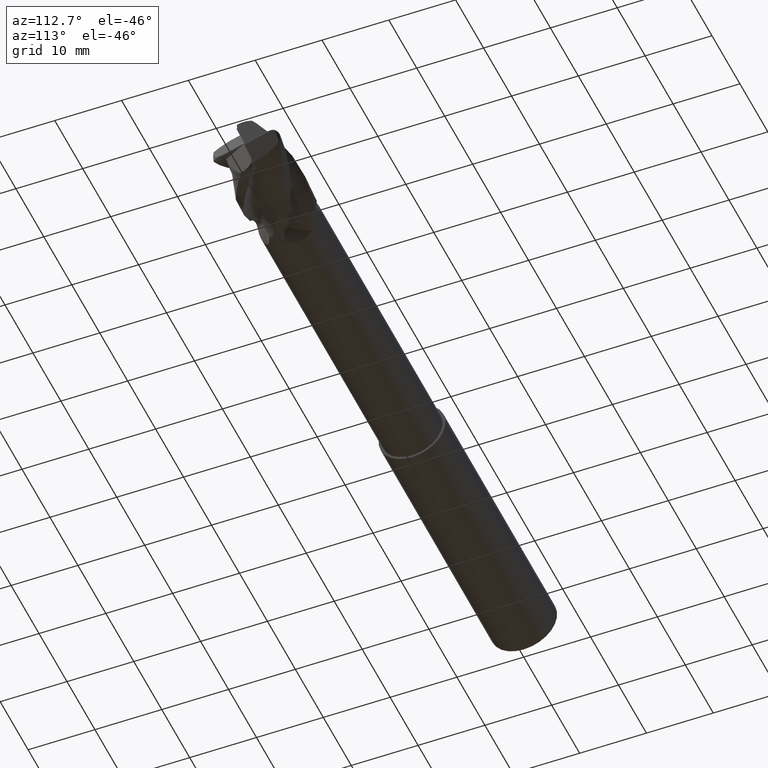
[diagram: clean part render]
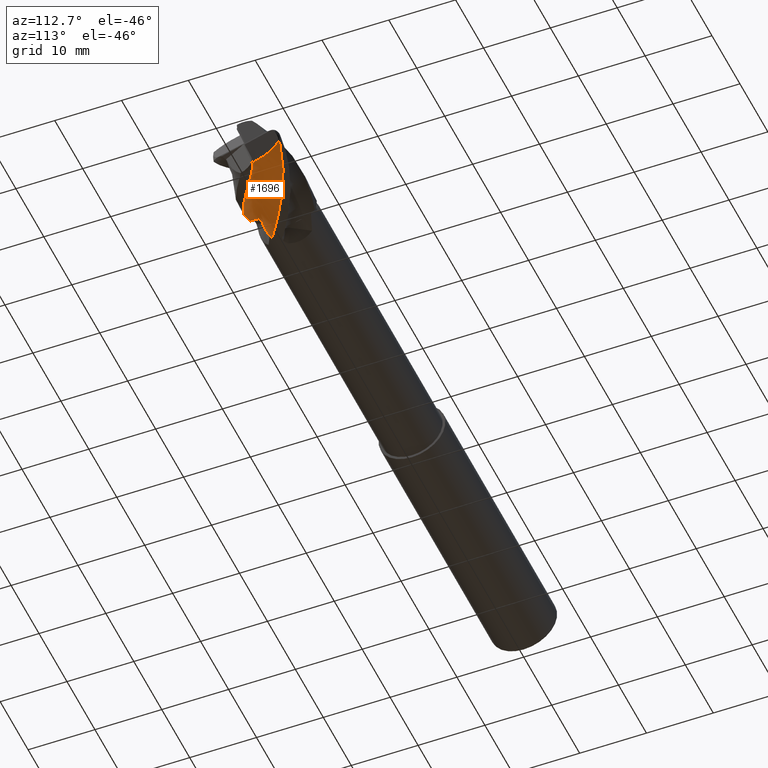
[diagram: same view with one face highlighted and labeled with its STEP entity id]
A machine part, auxiliary view. The second image highlights one B-rep face of the part: STEP entity #1696.
In plain terms, the highlighted face is a freeform B-spline surface patch.
Its self-contained STEP definition (entity closure, byte-faithful):
#38 = EDGE_CURVE ( 'NONE', #1763, #1782, #160, .T. ) ;
#58 = EDGE_CURVE ( 'NONE', #1766, #1767, #156, .T. ) ;
#74 = EDGE_CURVE ( 'NONE', #2662, #2607, #415, .T. ) ;
#92 = EDGE_CURVE ( 'NONE', #1789, #1786, #733, .T. ) ;
#102 = EDGE_CURVE ( 'NONE', #1779, #1789, #732, .T. ) ;
#156 = B_SPLINE_CURVE_WITH_KNOTS ( 'NONE', 3,
 ( #5655, #5666, #5671, #5669, #5667, #5661, #5668, #5672, #5662, #5654, #5657, #5670, #5650, #5651, #5663, #5665, #5664, #5653, #5659, #5648, #4824, #4726, #4716, #4748, #4780, #4777 ),
 .UNSPECIFIED., .F., .F.,
 ( 4, 2, 2, 2, 2, 2, 2, 2, 2, 2, 2, 2, 4 ),
 ( 8.324215926712369400E-017, 0.001939156009957261600, 0.002908734014935850400, 0.003878312019914439100, 0.005817468029871614800, 0.006787046034850201400, 0.007756624039828789700, 0.009695780049785964600, 0.01066535805476454500, 0.01163493605974312400, 0.01357409206970029900, 0.01454367007467889500, 0.01551324807965748900 ),
 .UNSPECIFIED. ) ;
#160 = B_SPLINE_CURVE_WITH_KNOTS ( 'NONE', 3,
 ( #2764, #452, #451, #453, #5582, #5584, #5569, #5581, #5578, #5580, #5579, #5583 ),
 .UNSPECIFIED., .F., .F.,
 ( 4, 2, 2, 2, 2, 4 ),
 ( 0.0000000000000000000, 0.0004275252582157458200, 0.0008550505164314918600, 0.001282575774647238100, 0.001496338403755105400, 0.001710101032862973100 ),
 .UNSPECIFIED. ) ;
#169 = EDGE_CURVE ( 'NONE', #1786, #1766, #716, .T. ) ;
#191 = EDGE_CURVE ( 'NONE', #1782, #1779, #2711, .T. ) ;
#217 = EDGE_CURVE ( 'NONE', #1767, #2643, #2730, .T. ) ;
#234 = EDGE_CURVE ( 'NONE', #2643, #2662, #2717, .T. ) ;
#317 = CARTESIAN_POINT ( 'NONE',  ( 45.99999999999997200, -3.529516829317929500, -0.1851095921582330600 ) ) ;
#318 = CARTESIAN_POINT ( 'NONE',  ( 45.99999999999998600, -3.275838028917830200, -0.4259428403772095900 ) ) ;
#319 = CARTESIAN_POINT ( 'NONE',  ( 45.99999999999996400, -3.161059373026418000, -0.6436876724968448900 ) ) ;
#337 = CARTESIAN_POINT ( 'NONE',  ( 59.99714993954945200, 1.078809157000151000, -3.513018445286014000 ) ) ;
#338 = CARTESIAN_POINT ( 'NONE',  ( 59.99853558469167300, 1.058041002878561200, -3.683273640296142600 ) ) ;
#340 = CARTESIAN_POINT ( 'NONE',  ( 59.99602833100370700, 1.137561027736997200, -3.357411630902131300 ) ) ;
#360 = CARTESIAN_POINT ( 'NONE',  ( 60.00000000000000000, 1.088817076066964400, -3.848957959612783400 ) ) ;
#367 = CARTESIAN_POINT ( 'NONE',  ( 45.99999999999997900, -2.906013568409943700, -2.011059925496842200 ) ) ;
#368 = CARTESIAN_POINT ( 'NONE',  ( 45.99999999999998600, -3.098800133782952900, -0.9260452901069511400 ) ) ;
#370 = CARTESIAN_POINT ( 'NONE',  ( 46.00000000000000700, -3.092073378238994400, -0.9838059069133665600 ) ) ;
#371 = CARTESIAN_POINT ( 'NONE',  ( 46.00000000000000000, -3.077523979198901700, -1.099080384364972600 ) ) ;
#372 = CARTESIAN_POINT ( 'NONE',  ( 46.00000000000000700, -3.069647595265638800, -1.156575587592473500 ) ) ;
#373 = CARTESIAN_POINT ( 'NONE',  ( 45.99999999999999300, -3.044208163997244500, -1.328711892809693300 ) ) ;
#378 = CARTESIAN_POINT ( 'NONE',  ( 46.00000000000000700, -3.024834418264444200, -1.443004532401514800 ) ) ;
#380 = CARTESIAN_POINT ( 'NONE',  ( 45.99999999999999300, -2.959477107630369600, -1.784488972969075200 ) ) ;
#381 = CARTESIAN_POINT ( 'NONE',  ( 45.99999999999998600, -1.691591331482551300, -4.705158739857060900 ) ) ;
#383 = CARTESIAN_POINT ( 'NONE',  ( 45.99999999999997200, -2.594242809929294700, -3.121278543714051300 ) ) ;
#384 = CARTESIAN_POINT ( 'NONE',  ( 45.99999999999998600, -2.205103977371806400, -3.942858431902057000 ) ) ;
#386 = CARTESIAN_POINT ( 'NONE',  ( 46.00000000000001400, -3.627236731883142000, -0.1193411230585577800 ) ) ;
#415 = LINE ( 'NONE', #4709, #442 ) ;
#417 = EDGE_LOOP ( 'NONE', ( #709, #486, #680, #547, #581, #514, #526, #690, #477, #691 ) ) ;
#442 = VECTOR ( 'NONE', #4732, 1000.000000000000000 ) ;
#451 = CARTESIAN_POINT ( 'NONE',  ( 59.23807028003486200, 0.8630167669702241100, -4.904270866197449200 ) ) ;
#452 = CARTESIAN_POINT ( 'NONE',  ( 59.12064028403644800, 0.7896058702466488600, -4.937898635752723000 ) ) ;
#453 = CARTESIAN_POINT ( 'NONE',  ( 59.46896441576322400, 0.9943022478572706200, -4.790272084161220100 ) ) ;
#477 = ORIENTED_EDGE ( 'NONE', *, *, #5700, .F. ) ;
#486 = ORIENTED_EDGE ( 'NONE', *, *, #217, .F. ) ;
#514 = ORIENTED_EDGE ( 'NONE', *, *, #102, .F. ) ;
#526 = ORIENTED_EDGE ( 'NONE', *, *, #191, .F. ) ;
#547 = ORIENTED_EDGE ( 'NONE', *, *, #169, .F. ) ;
#581 = ORIENTED_EDGE ( 'NONE', *, *, #92, .F. ) ;
#680 = ORIENTED_EDGE ( 'NONE', *, *, #58, .F. ) ;
#690 = ORIENTED_EDGE ( 'NONE', *, *, #38, .F. ) ;
#691 = ORIENTED_EDGE ( 'NONE', *, *, #74, .F. ) ;
#709 = ORIENTED_EDGE ( 'NONE', *, *, #234, .F. ) ;
#716 = B_SPLINE_CURVE_WITH_KNOTS ( 'NONE', 3,
 ( #2875, #2870, #2869, #2867 ),
 .UNSPECIFIED., .F., .F.,
 ( 4, 4 ),
 ( 0.001710868118500819800, 0.002073565971242148600 ),
 .UNSPECIFIED. ) ;
#732 = B_SPLINE_CURVE_WITH_KNOTS ( 'NONE', 3,
 ( #2997, #3072, #3026, #2984, #3017, #3044 ),
 .UNSPECIFIED., .F., .F.,
 ( 4, 2, 4 ),
 ( 0.001822405988376531300, 0.002373485176579898100, 0.002924564364783264500 ),
 .UNSPECIFIED. ) ;
#733 = B_SPLINE_CURVE_WITH_KNOTS ( 'NONE', 3,
 ( #3067, #3068, #3065, #2951, #3021, #3038, #3050, #3052, #3036, #3023, #3013, #2993 ),
 .UNSPECIFIED., .F., .F.,
 ( 4, 2, 2, 2, 2, 4 ),
 ( 0.002025208126637110600, 0.002608545509489196800, 0.003191882892341282500, 0.004358557658045454800, 0.005525232423749627100, 0.006691907189453800300 ),
 .UNSPECIFIED. ) ;
#1696 = ADVANCED_FACE ( 'NONE', ( #2774 ), #4814, .F. ) ;
#1763 = VERTEX_POINT ( 'NONE', #5271 ) ;
#1766 = VERTEX_POINT ( 'NONE', #5274 ) ;
#1767 = VERTEX_POINT ( 'NONE', #5275 ) ;
#1779 = VERTEX_POINT ( 'NONE', #5286 ) ;
#1782 = VERTEX_POINT ( 'NONE', #5289 ) ;
#1786 = VERTEX_POINT ( 'NONE', #5293 ) ;
#1789 = VERTEX_POINT ( 'NONE', #5296 ) ;
#1799 = CARTESIAN_POINT ( 'NONE',  ( 46.00000000000000000, -3.956909409790347400, -3.993948575847859300E-014 ) ) ;
#1801 = CARTESIAN_POINT ( 'NONE',  ( 46.00000000000002100, -4.075000000000009900, -4.164332582023078000E-014 ) ) ;
#1910 = CARTESIAN_POINT ( 'NONE',  ( 46.00000000000002100, -4.075000000000009900, -4.164332582023078000E-014 ) ) ;
#1936 = CARTESIAN_POINT ( 'NONE',  ( 46.00000000000000000, -4.250000000000012400, -4.090430909306575300E-014 ) ) ;
#1937 = CARTESIAN_POINT ( 'NONE',  ( 46.00000000000000000, -4.425000000000014000, -4.090430909306575300E-014 ) ) ;
#1938 = CARTESIAN_POINT ( 'NONE',  ( 46.00000000000002800, -4.603806250000014100, -4.676041058834078400E-014 ) ) ;
#2607 = VERTEX_POINT ( 'NONE', #5320 ) ;
#2643 = VERTEX_POINT ( 'NONE', #5331 ) ;
#2662 = VERTEX_POINT ( 'NONE', #5335 ) ;
#2711 = B_SPLINE_CURVE_WITH_KNOTS ( 'NONE', 3,
 ( #360, #338, #337, #340 ),
 .UNSPECIFIED., .F., .F.,
 ( 4, 4 ),
 ( 0.0000000000000000000, 0.0004974621187295739700 ),
 .UNSPECIFIED. ) ;
#2717 = B_SPLINE_CURVE_WITH_KNOTS ( 'NONE', 3,
 ( #1910, #1936, #1937, #1938 ),
 .UNSPECIFIED., .F., .F.,
 ( 4, 4 ),
 ( 0.0000000000000000000, 1.000000000000000000 ),
 .UNSPECIFIED. ) ;
#2730 = B_SPLINE_CURVE_WITH_KNOTS ( 'NONE', 3,
 ( #381, #384, #383, #367, #380, #378, #373, #372, #371, #370, #368, #319, #318, #317, #386, #2847, #1799, #1801 ),
 .UNSPECIFIED., .F., .F.,
 ( 4, 2, 2, 2, 2, 2, 2, 2, 4 ),
 ( 0.0004284838340080712700, 0.003155709349303424800, 0.003837515728127263000, 0.004178418917539182400, 0.004348870512245141600, 0.004519322106951100000, 0.005201128485774936900, 0.005542031675186854600, 0.005882934864598773000 ),
 .UNSPECIFIED. ) ;
#2764 = CARTESIAN_POINT ( 'NONE',  ( 59.00000000000000000, 0.7109128242130307000, -4.949202254543070700 ) ) ;
#2774 = FACE_OUTER_BOUND ( 'NONE', #417, .T. ) ;
#2847 = CARTESIAN_POINT ( 'NONE',  ( 46.00000000000002800, -3.842197877478057000, -0.02631695675849912700 ) ) ;
#2867 = CARTESIAN_POINT ( 'NONE',  ( 59.00000000000000000, 4.896815992771973200, -1.010541010020307400 ) ) ;
#2869 = CARTESIAN_POINT ( 'NONE',  ( 59.10380185336926200, 4.910193910547110200, -0.9457151384705778700 ) ) ;
#2870 = CARTESIAN_POINT ( 'NONE',  ( 59.21775362647422000, 4.903132288229233600, -0.8918899981819907700 ) ) ;
#2875 = CARTESIAN_POINT ( 'NONE',  ( 59.33249920832221100, 4.866457508753796000, -0.8671008399181759900 ) ) ;
#2951 = CARTESIAN_POINT ( 'NONE',  ( 59.00432694237938600, 1.603402126192876800, -2.869719317875908200 ) ) ;
#2984 = CARTESIAN_POINT ( 'NONE',  ( 59.31282440466891600, 0.9724759487064628100, -3.228141033657491800 ) ) ;
#2993 = CARTESIAN_POINT ( 'NONE',  ( 59.33249920832221100, 4.866457508753796000, -0.8671008399181759900 ) ) ;
#2997 = CARTESIAN_POINT ( 'NONE',  ( 59.99602833100370700, 1.137561027736997200, -3.357411630902131300 ) ) ;
#3013 = CARTESIAN_POINT ( 'NONE',  ( 59.26893102367462500, 4.606681720037986600, -1.150183232524787600 ) ) ;
#3017 = CARTESIAN_POINT ( 'NONE',  ( 59.13930619490221800, 0.9357814397272847800, -3.210721401686719400 ) ) ;
#3021 = CARTESIAN_POINT ( 'NONE',  ( 59.00566763323038800, 1.790271074294630400, -2.812671759221416800 ) ) ;
#3023 = CARTESIAN_POINT ( 'NONE',  ( 59.21516100259059100, 4.322168735479726500, -1.407873049639504900 ) ) ;
#3026 = CARTESIAN_POINT ( 'NONE',  ( 59.65717465113026200, 1.050390222917853700, -3.277710411183651900 ) ) ;
#3036 = CARTESIAN_POINT ( 'NONE',  ( 59.12419992835034300, 3.711286231325773100, -1.880287214680928900 ) ) ;
#3038 = CARTESIAN_POINT ( 'NONE',  ( 59.01713705153469600, 2.342872375194653900, -2.619188618039141000 ) ) ;
#3044 = CARTESIAN_POINT ( 'NONE',  ( 58.96502804183592900, 0.9003671677530082900, -3.197469055598349400 ) ) ;
#3050 = CARTESIAN_POINT ( 'NONE',  ( 59.03423178705293100, 2.700676605359914300, -2.461980378652717200 ) ) ;
#3052 = CARTESIAN_POINT ( 'NONE',  ( 59.08770827990990400, 3.384478062803634400, -2.092825309109758600 ) ) ;
#3065 = CARTESIAN_POINT ( 'NONE',  ( 59.00564662409079400, 1.225404124342779600, -2.971800587309078700 ) ) ;
#3067 = CARTESIAN_POINT ( 'NONE',  ( 58.96502804183592900, 0.9003671677530082900, -3.197469055598349400 ) ) ;
#3068 = CARTESIAN_POINT ( 'NONE',  ( 58.99055427674379400, 1.048948359004662400, -3.071330523331595500 ) ) ;
#3072 = CARTESIAN_POINT ( 'NONE',  ( 59.82821170705414500, 1.091468156621245000, -3.309335361807225900 ) ) ;
#4240 = CARTESIAN_POINT ( 'NONE',  ( 41.59778928541393100, -3.149999999999911500, -6.679860838698939300 ) ) ;
#4241 = CARTESIAN_POINT ( 'NONE',  ( 42.63379712821317500, -2.260564687721868400, -7.116287527338527300 ) ) ;
#4242 = CARTESIAN_POINT ( 'NONE',  ( 43.67681224955806800, -1.221168424195003400, -7.341838867624955100 ) ) ;
#4243 = CARTESIAN_POINT ( 'NONE',  ( 45.73989784977448600, 0.7474576552271101600, -7.438832626014050000 ) ) ;
#4244 = CARTESIAN_POINT ( 'NONE',  ( 46.78711680419365100, 1.807706374354184800, -7.219595434210525300 ) ) ;
#4245 = CARTESIAN_POINT ( 'NONE',  ( 48.85190096149932500, 3.657857319184828300, -6.510419248440435100 ) ) ;
#4246 = CARTESIAN_POINT ( 'NONE',  ( 49.89797893410978700, 4.535201178605055900, -5.901899140139222200 ) ) ;
#4247 = CARTESIAN_POINT ( 'NONE',  ( 51.96229978740591800, 5.949594400822266300, -4.521031375611245000 ) ) ;
#4248 = CARTESIAN_POINT ( 'NONE',  ( 53.00979443688331100, 6.512254108414159900, -3.602721983293705900 ) ) ;
#4249 = CARTESIAN_POINT ( 'NONE',  ( 55.07406752468383400, 7.257441543561424300, -1.770345038065678000 ) ) ;
#4250 = CARTESIAN_POINT ( 'NONE',  ( 56.12028152415644700, 7.409637548478327700, -0.7098267152868208400 ) ) ;
#4251 = CARTESIAN_POINT ( 'NONE',  ( 58.18436103529151600, 7.362820171123376900, 1.267928681854340500 ) ) ;
#4252 = CARTESIAN_POINT ( 'NONE',  ( 59.23199202011014800, 7.074896574406921900, 2.305294312570544100 ) ) ;
#4253 = CARTESIAN_POINT ( 'NONE',  ( 61.29665352386585700, 6.245505073497851900, 4.099175029076707900 ) ) ;
#4254 = CARTESIAN_POINT ( 'NONE',  ( 62.34235640521855300, 5.577668841587285300, 4.933528188810390300 ) ) ;
#4255 = CARTESIAN_POINT ( 'NONE',  ( 64.40653884820876800, 4.095187487469322800, 6.249096972764965200 ) ) ;
#4256 = CARTESIAN_POINT ( 'NONE',  ( 65.45451604803744800, 3.134208717927992700, 6.743926396041722200 ) ) ;
#4257 = CARTESIAN_POINT ( 'NONE',  ( 67.51842746812833700, 1.263751567697382500, 7.362700056643749500 ) ) ;
#4258 = CARTESIAN_POINT ( 'NONE',  ( 68.56302018386395500, 0.2004755758106100100, 7.444701157372800400 ) ) ;
#4259 = CARTESIAN_POINT ( 'NONE',  ( 69.59552992334589300, -0.7849577433630089400, 7.354280524357603700 ) ) ;
#4260 = CARTESIAN_POINT ( 'NONE',  ( 42.63441696723484100, -3.149999999999932400, -5.106894639429264700 ) ) ;
#4261 = CARTESIAN_POINT ( 'NONE',  ( 43.66950917770056200, -2.470520452167410700, -5.542903565996444300 ) ) ;
#4262 = CARTESIAN_POINT ( 'NONE',  ( 44.71321842190726400, -1.654506733066907400, -5.815363603125661000 ) ) ;
#4263 = CARTESIAN_POINT ( 'NONE',  ( 46.77638856132441700, -0.06764452093895696700, -6.077441319077956400 ) ) ;
#4264 = CARTESIAN_POINT ( 'NONE',  ( 47.82370902283396000, 0.8015253586371592400, -5.992473585882693000 ) ) ;
#4265 = CARTESIAN_POINT ( 'NONE',  ( 49.88841220668172100, 2.365423877143783200, -5.589543875652213800 ) ) ;
#4266 = CARTESIAN_POINT ( 'NONE',  ( 50.93445629140524000, 3.123426326659469100, -5.177295999669211400 ) ) ;
#4267 = CARTESIAN_POINT ( 'NONE',  ( 52.99880574983142600, 4.397698853686512700, -4.189852157081169500 ) ) ;
#4268 = CARTESIAN_POINT ( 'NONE',  ( 54.04632799934333300, 4.928632906915000300, -3.501445480982362300 ) ) ;
#4269 = CARTESIAN_POINT ( 'NONE',  ( 56.11056731706400300, 5.702314671851774500, -2.086264759850751100 ) ) ;
#4270 = CARTESIAN_POINT ( 'NONE',  ( 57.15679207447630000, 5.916726406741236800, -1.247803368420269800 ) ) ;
#4271 = CARTESIAN_POINT ( 'NONE',  ( 59.22088338701416200, 6.062290899487351200, 0.3586653020281404500 ) ) ;
#4272 = CARTESIAN_POINT ( 'NONE',  ( 60.26850987606578500, 5.920926217683087200, 1.216080272916132900 ) ) ;
#4273 = CARTESIAN_POINT ( 'NONE',  ( 62.33311978958930400, 5.415644167434532400, 2.746580554563236500 ) ) ;
#4274 = CARTESIAN_POINT ( 'NONE',  ( 63.37887708635610600, 4.951753776736641300, 3.475239320002823100 ) ) ;
#4275 = CARTESIAN_POINT ( 'NONE',  ( 65.44312021043384700, 3.872960793500567900, 4.677834400549800300 ) ) ;
#4276 = CARTESIAN_POINT ( 'NONE',  ( 66.49102041257504000, 3.145007469831135900, 5.157221340712136600 ) ) ;
#4277 = CARTESIAN_POINT ( 'NONE',  ( 68.55482195883874400, 1.686518302624518700, 5.833255280062862100 ) ) ;
#4278 = CARTESIAN_POINT ( 'NONE',  ( 69.60008720080567500, 0.8387210443358279500, 5.992050238093044700 ) ) ;
#4279 = CARTESIAN_POINT ( 'NONE',  ( 70.63215502731299000, 0.03223094022808317000, 6.010245307557778600 ) ) ;
#4280 = CARTESIAN_POINT ( 'NONE',  ( 43.67104464905574400, -3.149999999999953700, -3.533928440159599400 ) ) ;
#4281 = CARTESIAN_POINT ( 'NONE',  ( 44.70510543196045500, -2.680213191079742400, -3.969470880507628000 ) ) ;
#4282 = CARTESIAN_POINT ( 'NONE',  ( 45.74962459425214000, -2.087845041938941400, -4.288888338626376800 ) ) ;
#4283 = CARTESIAN_POINT ( 'NONE',  ( 47.81287927287864600, -0.8827466971048850700, -4.716050012141870700 ) ) ;
#4284 = CARTESIAN_POINT ( 'NONE',  ( 48.86030124147427500, -0.2046556570798611100, -4.765351737554327700 ) ) ;
#4285 = CARTESIAN_POINT ( 'NONE',  ( 50.92492345186411000, 1.072990435102743100, -4.668668502864536100 ) ) ;
#4286 = CARTESIAN_POINT ( 'NONE',  ( 51.97093364870068700, 1.711651474713891600, -4.452692859198665000 ) ) ;
#4287 = CARTESIAN_POINT ( 'NONE',  ( 54.03531171225692700, 2.845803306550768400, -3.858672938551636300 ) ) ;
#4288 = CARTESIAN_POINT ( 'NONE',  ( 55.08286156180764700, 3.345011705415581000, -3.400168978669942300 ) ) ;
#4289 = CARTESIAN_POINT ( 'NONE',  ( 57.14706710943984500, 4.147187800142404500, -2.402184481636901100 ) ) ;
#4290 = CARTESIAN_POINT ( 'NONE',  ( 58.19330262479184100, 4.423815265004153100, -1.785780021553579300 ) ) ;
#4291 = CARTESIAN_POINT ( 'NONE',  ( 60.25740573874109900, 4.761761627851335300, -0.5505980777981908100 ) ) ;
#4292 = CARTESIAN_POINT ( 'NONE',  ( 61.30502773201712300, 4.766955860959261500, 0.1268662332617289400 ) ) ;
#4293 = CARTESIAN_POINT ( 'NONE',  ( 63.36958605531705000, 4.585783261371219100, 1.393986080049772100 ) ) ;
#4294 = CARTESIAN_POINT ( 'NONE',  ( 64.41539776751946500, 4.325838711886540000, 2.016950451193918700 ) ) ;
#4295 = CARTESIAN_POINT ( 'NONE',  ( 66.47970157263306100, 3.650734099531277400, 3.106571828335990700 ) ) ;
#4296 = CARTESIAN_POINT ( 'NONE',  ( 67.52752477709539400, 3.155806221735355500, 3.570516285382559800 ) ) ;
#4297 = CARTESIAN_POINT ( 'NONE',  ( 69.59121644956638900, 2.109285037550578900, 4.303810503481982700 ) ) ;
#4298 = CARTESIAN_POINT ( 'NONE',  ( 70.63705814052166000, 1.477219971162513800, 4.539506116260702700 ) ) ;
#4299 = CARTESIAN_POINT ( 'NONE',  ( 71.66878013128005900, 0.8494196238191704700, 4.666210090757962400 ) ) ;
#4300 = CARTESIAN_POINT ( 'NONE',  ( 44.96877968262643300, -3.149999999999979500, -1.564761130418152800 ) ) ;
#4301 = CARTESIAN_POINT ( 'NONE',  ( 46.00156840186606600, -2.942208710563716700, -1.999727733564452300 ) ) ;
#4302 = CARTESIAN_POINT ( 'NONE',  ( 47.04708232420694000, -2.630333260875390900, -2.377922170772750500 ) ) ;
#4303 = CARTESIAN_POINT ( 'NONE',  ( 49.11044283590159400, -1.903158044882553100, -3.011749399306885800 ) ) ;
#4304 = CARTESIAN_POINT ( 'NONE',  ( 50.15799187935180500, -1.464275072139099800, -3.229140578076201700 ) ) ;
#4305 = CARTESIAN_POINT ( 'NONE',  ( 52.22251272055216000, -0.5449831013062923500, -3.515841645377595400 ) ) ;
#4306 = CARTESIAN_POINT ( 'NONE',  ( 53.26848049377265000, -0.05572336681590597100, -3.545575581399667400 ) ) ;
#4307 = CARTESIAN_POINT ( 'NONE',  ( 55.33289436757035400, 0.9030139567400359300, -3.444075796479462200 ) ) ;
#4308 = CARTESIAN_POINT ( 'NONE',  ( 56.38047876909668300, 1.362505595333159700, -3.273382797447836000 ) ) ;
#4309 = CARTESIAN_POINT ( 'NONE',  ( 58.44464204057707200, 2.200353214826263200, -2.797678541795994200 ) ) ;
#4310 = CARTESIAN_POINT ( 'NONE',  ( 59.49089102359271700, 2.554867402028808700, -2.459263049508444000 ) ) ;
#4311 = CARTESIAN_POINT ( 'NONE',  ( 61.55500891151744700, 3.133653072018082000, -1.688888095937041100 ) ) ;
#4312 = CARTESIAN_POINT ( 'NONE',  ( 62.60262527661042500, 3.322321701671305100, -1.236700689659397900 ) ) ;
#4313 = CARTESIAN_POINT ( 'NONE',  ( 64.66711901506568000, 3.546895732438962900, -0.2993019408799151800 ) ) ;
#4314 = CARTESIAN_POINT ( 'NONE',  ( 65.71299884891054400, 3.542267211780363700, 0.1913455717311904300 ) ) ;
#4315 = CARTESIAN_POINT ( 'NONE',  ( 67.77737861955982600, 3.372532609048579700, 1.139537257814405600 ) ) ;
#4316 = CARTESIAN_POINT ( 'NONE',  ( 68.82510543202791100, 3.169324979636270800, 1.584149555692211200 ) ) ;
#4317 = CARTESIAN_POINT ( 'NONE',  ( 70.88865955550682000, 2.638538898473083100, 2.389126858343269900 ) ) ;
#4318 = CARTESIAN_POINT ( 'NONE',  ( 71.93486563345527400, 2.276912965869645000, 2.721140699764606800 ) ) ;
#4319 = CARTESIAN_POINT ( 'NONE',  ( 72.96651193768322200, 1.872443031674574600, 2.983637246349545100 ) ) ;
#4320 = CARTESIAN_POINT ( 'NONE',  ( 45.22988703437621200, -3.149999999999985300, -1.168560019946376600 ) ) ;
#4321 = CARTESIAN_POINT ( 'NONE',  ( 46.26245174582923900, -2.994850509682975800, -1.603424222805275500 ) ) ;
#4322 = CARTESIAN_POINT ( 'NONE',  ( 47.30813388182115600, -2.739483170940342700, -1.993431267418683600 ) ) ;
#4323 = CARTESIAN_POINT ( 'NONE',  ( 49.37151568736597800, -2.108467216493751500, -2.668840093407721400 ) ) ;
#4324 = CARTESIAN_POINT ( 'NONE',  ( 50.41909029858472000, -1.717713471481719700, -2.920051266928328300 ) ) ;
#4325 = CARTESIAN_POINT ( 'NONE',  ( 52.48359074406212700, -0.8705231956738814800, -3.283890160676450800 ) ) ;
#4326 = CARTESIAN_POINT ( 'NONE',  ( 53.52954998156208400, -0.4113233564005254700, -3.363061444071488500 ) ) ;
#4327 = CARTESIAN_POINT ( 'NONE',  ( 55.59397106044535500, 0.5121201540654554100, -3.360657872936554800 ) ) ;
#4328 = CARTESIAN_POINT ( 'NONE',  ( 56.64156241391278700, 0.9636206867498937600, -3.247873118537343300 ) ) ;
#4329 = CARTESIAN_POINT ( 'NONE',  ( 58.70571717934707600, 1.808645501219765100, -2.877252880169744100 ) ) ;
#4330 = CARTESIAN_POINT ( 'NONE',  ( 59.75196887209097000, 2.178830680790822000, -2.594769424329190800 ) ) ;
#4331 = CARTESIAN_POINT ( 'NONE',  ( 61.81608973255392700, 2.806073787820582100, -1.917914734250368000 ) ) ;
#4332 = CARTESIAN_POINT ( 'NONE',  ( 62.86370496525670100, 3.031657899106911600, -1.511053572927866500 ) ) ;
#4333 = CARTESIAN_POINT ( 'NONE',  ( 64.92818570908227100, 3.337869109570291500, -0.6399954872943849300 ) ) ;
#4334 = CARTESIAN_POINT ( 'NONE',  ( 65.97407924917273200, 3.384610776524561900, -0.1759704389235725300 ) ) ;
#4335 = CARTESIAN_POINT ( 'NONE',  ( 68.03847430425291500, 3.316557812534906400, 0.7437652595075775500 ) ) ;
#4336 = CARTESIAN_POINT ( 'NONE',  ( 69.08618172244007400, 3.172044985633775100, 1.184487881331443000 ) ) ;
#4337 = CARTESIAN_POINT ( 'NONE',  ( 71.14970817071957800, 2.745026024468721500, 2.003887989785440900 ) ) ;
#4338 = CARTESIAN_POINT ( 'NONE',  ( 72.19591727102853400, 2.437849512570331000, 2.355268794788738100 ) ) ;
#4339 = CARTESIAN_POINT ( 'NONE',  ( 73.22761864011926000, 2.078277755938888700, 2.645099618740950100 ) ) ;
#4340 = CARTESIAN_POINT ( 'NONE',  ( 45.62425174422454400, -3.149999999999993200, -0.5701558198129402800 ) ) ;
#4341 = CARTESIAN_POINT ( 'NONE',  ( 46.65651368893364300, -3.074318966824030500, -1.004880345073452500 ) ) ;
#4342 = CARTESIAN_POINT ( 'NONE',  ( 47.70241432272239000, -2.904338248072506200, -1.412713633371325900 ) ) ;
#4343 = CARTESIAN_POINT ( 'NONE',  ( 49.76582828956046700, -2.418556884016755900, -2.150925419542651700 ) ) ;
#4344 = CARTESIAN_POINT ( 'NONE',  ( 50.81344151716112400, -2.100495343195816200, -2.453216780302658300 ) ) ;
#4345 = CARTESIAN_POINT ( 'NONE',  ( 52.87791115786959800, -1.362204199670981500, -2.933561150980589400 ) ) ;
#4346 = CARTESIAN_POINT ( 'NONE',  ( 53.92385750337570000, -0.9484054637204616400, -3.087400363185944100 ) ) ;
#4347 = CARTESIAN_POINT ( 'NONE',  ( 55.98828946454389000, -0.07826812891595753800, -3.234667221988461300 ) ) ;
#4348 = CARTESIAN_POINT ( 'NONE',  ( 57.03589131789845400, 0.3611629995868138000, -3.209344455691878200 ) ) ;
#4349 = CARTESIAN_POINT ( 'NONE',  ( 59.10003323615524100, 1.217027924056793800, -2.997438354282279800 ) ) ;
#4350 = CARTESIAN_POINT ( 'NONE',  ( 60.14628902154476700, 1.610881860239920900, -2.799432111269369200 ) ) ;
#4351 = CARTESIAN_POINT ( 'NONE',  ( 62.21041437163596300, 2.311312883927894500, -2.263826188525940500 ) ) ;
#4352 = CARTESIAN_POINT ( 'NONE',  ( 63.25802789400289300, 2.592652465542129900, -1.925423733250105900 ) ) ;
#4353 = CARTESIAN_POINT ( 'NONE',  ( 65.32248901133752400, 3.022164772156501500, -1.154563578460368500 ) ) ;
#4354 = CARTESIAN_POINT ( 'NONE',  ( 66.36840325271879200, 3.146493642217273600, -0.7307478934600106800 ) ) ;
#4355 = CARTESIAN_POINT ( 'NONE',  ( 68.43282139270449700, 3.232016016839926600, 0.1460091709392553900 ) ) ;
#4356 = CARTESIAN_POINT ( 'NONE',  ( 69.48049951863104900, 3.176153159413432000, 0.5808570023440946500 ) ) ;
#4357 = CARTESIAN_POINT ( 'NONE',  ( 71.54398416758542100, 2.905859353229041500, 1.422040662994360500 ) ) ;
#4358 = CARTESIAN_POINT ( 'NONE',  ( 72.59014708344766100, 2.680931100362197000, 1.802653715600282600 ) ) ;
#4359 = CARTESIAN_POINT ( 'NONE',  ( 73.62198236927356700, 2.389161194368442300, 2.133787729627444100 ) ) ;
#4360 = CARTESIAN_POINT ( 'NONE',  ( 45.75668852580385200, -3.249690114160921800, -0.3691978629519162600 ) ) ;
#4361 = CARTESIAN_POINT ( 'NONE',  ( 46.78914674200093100, -3.200687868664579200, -0.8173039759731496300 ) ) ;
#4362 = CARTESIAN_POINT ( 'NONE',  ( 47.83460676926808500, -3.056498673120774200, -1.245028610157497700 ) ) ;
#4363 = CARTESIAN_POINT ( 'NONE',  ( 49.89863270383921200, -2.608860584283526900, -2.028883211612115400 ) ) ;
#4364 = CARTESIAN_POINT ( 'NONE',  ( 50.94567732442010300, -2.306909835052912200, -2.360125630106569600 ) ) ;
#4365 = CARTESIAN_POINT ( 'NONE',  ( 53.01061813181801300, -1.585541467740716000, -2.897944767850282800 ) ) ;
#4366 = CARTESIAN_POINT ( 'NONE',  ( 54.05607305009517900, -1.174818063207018000, -3.084256997397007500 ) ) ;
#4367 = CARTESIAN_POINT ( 'NONE',  ( 56.12105407819866100, -0.2973070401891119200, -3.290776123344147000 ) ) ;
#4368 = CARTESIAN_POINT ( 'NONE',  ( 57.16811122057006100, 0.1522911982363153700, -3.296781334340039400 ) ) ;
#4369 = CARTESIAN_POINT ( 'NONE',  ( 59.23277011518507600, 1.038577854516775400, -3.136334314552763600 ) ) ;
#4370 = CARTESIAN_POINT ( 'NONE',  ( 60.27851672728869700, 1.454134469196617600, -2.962838608729854200 ) ) ;
#4371 = CARTESIAN_POINT ( 'NONE',  ( 62.34316487850274100, 2.202973295206379000, -2.462306858306146000 ) ) ;
#4372 = CARTESIAN_POINT ( 'NONE',  ( 63.39022958752239800, 2.514164290347189900, -2.137826686729673100 ) ) ;
#4373 = CARTESIAN_POINT ( 'NONE',  ( 65.45522952152308000, 3.001992926708188000, -1.379789132747957700 ) ) ;
#4374 = CARTESIAN_POINT ( 'NONE',  ( 66.50066362227654800, 3.158924313315480500, -0.9568272515142344200 ) ) ;
#4375 = CARTESIAN_POINT ( 'NONE',  ( 68.56557103471485000, 3.303254825784242700, -0.06861090768321150000 ) ) ;
#4376 = CARTESIAN_POINT ( 'NONE',  ( 69.61265773779709300, 3.278115673674976400, 0.3786574425883645300 ) ) ;
#4377 = CARTESIAN_POINT ( 'NONE',  ( 71.67672950532154600, 3.056759075110536900, 1.253654636259558400 ) ) ;
#4378 = CARTESIAN_POINT ( 'NONE',  ( 72.72236105603231200, 2.854684869333551100, 1.657464551586163700 ) ) ;
#4379 = CARTESIAN_POINT ( 'NONE',  ( 73.75454116064739200, 2.578702087075281900, 2.013937251014839000 ) ) ;
#4380 = CARTESIAN_POINT ( 'NONE',  ( 45.94514288891283400, -3.592162340643971800, -0.08323951119865687100 ) ) ;
#4381 = CARTESIAN_POINT ( 'NONE',  ( 46.97847702918340200, -3.581115688459950900, -0.5774018882313901600 ) ) ;
#4382 = CARTESIAN_POINT ( 'NONE',  ( 48.02227870122842300, -3.467815391585554500, -1.061422311443846800 ) ) ;
#4383 = CARTESIAN_POINT ( 'NONE',  ( 50.08838523531061100, -3.053062831544820700, -1.959634053755460200 ) ) ;
#4384 = CARTESIAN_POINT ( 'NONE',  ( 51.13345038426842800, -2.757332627014248900, -2.355813624108998600 ) ) ;
#4385 = CARTESIAN_POINT ( 'NONE',  ( 53.20003064076848200, -2.020505348782566400, -3.012344435538249600 ) ) ;
#4386 = CARTESIAN_POINT ( 'NONE',  ( 54.24380603812074500, -1.589664423126119700, -3.259752266320933500 ) ) ;
#4387 = CARTESIAN_POINT ( 'NONE',  ( 56.31066595895153200, -0.6507973425547186600, -3.568676301472557500 ) ) ;
#4388 = CARTESIAN_POINT ( 'NONE',  ( 57.35584472271715800, -0.1581147436692870700, -3.623197155712258000 ) ) ;
#4389 = CARTESIAN_POINT ( 'NONE',  ( 59.42228830355237800, 0.8253559260384532000, -3.532270778061235900 ) ) ;
#4390 = CARTESIAN_POINT ( 'NONE',  ( 60.46628295221340500, 1.299473699097483300, -3.385887434200955500 ) ) ;
#4391 = CARTESIAN_POINT ( 'NONE',  ( 62.53272408356526300, 2.165150180133422100, -2.910391364733859700 ) ) ;
#4392 = CARTESIAN_POINT ( 'NONE',  ( 63.57790457258639800, 2.541211788180033800, -2.587474438654740400 ) ) ;
#4393 = CARTESIAN_POINT ( 'NONE',  ( 65.64476880392982100, 3.146050643774176400, -1.805772701564074100 ) ) ;
#4394 = CARTESIAN_POINT ( 'NONE',  ( 66.68853945481279800, 3.362549640927000400, -1.358570152192688100 ) ) ;
#4395 = CARTESIAN_POINT ( 'NONE',  ( 68.75511209720345100, 3.605120347591911600, -0.4019416739262947100 ) ) ;
#4396 = CARTESIAN_POINT ( 'NONE',  ( 69.80018684112381800, 3.625618095147821900, 0.09196595793154642400 ) ) ;
#4397 = CARTESIAN_POINT ( 'NONE',  ( 71.86630382528949200, 3.466462742884725700, 1.068403587573882700 ) ) ;
#4398 = CARTESIAN_POINT ( 'NONE',  ( 72.91014524956015900, 3.287319761117260400, 1.532149482073488700 ) ) ;
#4399 = CARTESIAN_POINT ( 'NONE',  ( 73.94341533505870200, 3.019747373157882100, 1.947755276963947000 ) ) ;
#4400 = CARTESIAN_POINT ( 'NONE',  ( 46.00000000000002100, -3.832835566285794500, -3.845061841285518100E-014 ) ) ;
#4401 = CARTESIAN_POINT ( 'NONE',  ( 47.03400929694064600, -3.832835565134475000, -0.5265533936348086900 ) ) ;
#4402 = CARTESIAN_POINT ( 'NONE',  ( 48.07660253428552700, -3.724438865457130100, -1.046631652817299600 ) ) ;
#4403 = CARTESIAN_POINT ( 'NONE',  ( 50.14416488815228200, -3.304226055408627800, -2.012853528558750300 ) ) ;
#4404 = CARTESIAN_POINT ( 'NONE',  ( 51.18783136178990400, -2.998567298913908700, -2.444619320919032600 ) ) ;
#4405 = CARTESIAN_POINT ( 'NONE',  ( 53.25556980520314500, -2.229453526938614000, -3.161656032340299600 ) ) ;
#4406 = CARTESIAN_POINT ( 'NONE',  ( 54.29816745110292700, -1.775543629071438600, -3.437310230525444600 ) ) ;
#4407 = CARTESIAN_POINT ( 'NONE',  ( 56.36634562779562400, -0.7830719994990718000, -3.788756315436834200 ) ) ;
#4408 = CARTESIAN_POINT ( 'NONE',  ( 57.41020229068735100, -0.2577374563601276800, -3.860166084413416700 ) ) ;
#4409 = CARTESIAN_POINT ( 'NONE',  ( 59.47790259159336300, 0.7918970520667365500, -3.786873170790358200 ) ) ;
#4410 = CARTESIAN_POINT ( 'NONE',  ( 60.52066523839176400, 1.302512695191742700, -3.642924698313635600 ) ) ;
#4411 = CARTESIAN_POINT ( 'NONE',  ( 62.58836550788633700, 2.235899562197150900, -3.157235971948807700 ) ) ;
#4412 = CARTESIAN_POINT ( 'NONE',  ( 63.63222219298396700, 2.646580907241062000, -2.821950381462616300 ) ) ;
#4413 = CARTESIAN_POINT ( 'NONE',  ( 65.70040042494099500, 3.309393122965177200, -2.003907580536882000 ) ) ;
#4414 = CARTESIAN_POINT ( 'NONE',  ( 66.74299800985576800, 3.552490406736043700, -1.531759829240052100 ) ) ;
#4415 = CARTESIAN_POINT ( 'NONE',  ( 68.81073635551369700, 3.833888223069722200, -0.5185997664495071200 ) ) ;
#4416 = CARTESIAN_POINT ( 'NONE',  ( 69.85440295242031500, 3.869018140579232300, 0.009239431234030225100 ) ) ;
#4417 = CARTESIAN_POINT ( 'NONE',  ( 71.92196544058857900, 3.722743802128766900, 1.052679310590956700 ) ) ;
#4418 = CARTESIAN_POINT ( 'NONE',  ( 72.96455919235596400, 3.543537745735016100, 1.552796276627831600 ) ) ;
#4419 = CARTESIAN_POINT ( 'NONE',  ( 73.99856766252594300, 3.268535883442103900, 2.001831319050625600 ) ) ;
#4420 = CARTESIAN_POINT ( 'NONE',  ( 46.00000000000002100, -4.383333333333348000, -4.498033522734445400E-014 ) ) ;
#4421 = CARTESIAN_POINT ( 'NONE',  ( 47.03565233193266700, -4.383333332340744600, -0.6006905952979165700 ) ) ;
#4422 = CARTESIAN_POINT ( 'NONE',  ( 48.07540956643254800, -4.258967670415699100, -1.197569011393729600 ) ) ;
#4423 = CARTESIAN_POINT ( 'NONE',  ( 50.14629161974875200, -3.780055840726754400, -2.299369955748945300 ) ) ;
#4424 = CARTESIAN_POINT ( 'NONE',  ( 51.18674658234581200, -3.428558602033283900, -2.796280673768298800 ) ) ;
#4425 = CARTESIAN_POINT ( 'NONE',  ( 53.25714397634552500, -2.550946430068532100, -3.614645171537905500 ) ) ;
#4426 = CARTESIAN_POINT ( 'NONE',  ( 54.29705182433254200, -2.029824923155074700, -3.931150694835485700 ) ) ;
#4427 = CARTESIAN_POINT ( 'NONE',  ( 56.36824181753648600, -0.8977817346197146700, -4.332237487979683400 ) ) ;
#4428 = CARTESIAN_POINT ( 'NONE',  ( 57.40907106591159700, -0.2939214464334611300, -4.414449684137023800 ) ) ;
#4429 = CARTESIAN_POINT ( 'NONE',  ( 59.47964998105994300, 0.9036022065905189300, -4.330991747598171000 ) ) ;
#4430 = CARTESIAN_POINT ( 'NONE',  ( 60.51959333763270600, 1.490169574352101100, -4.165734288202679100 ) ) ;
#4431 = CARTESIAN_POINT ( 'NONE',  ( 62.59017223618572200, 2.555145682459969900, -3.611790171317435800 ) ) ;
#4432 = CARTESIAN_POINT ( 'NONE',  ( 63.63100149629859500, 3.027273741702568400, -3.226431752428399000 ) ) ;
#4433 = CARTESIAN_POINT ( 'NONE',  ( 65.70219151868811000, 3.783458823974528600, -2.293384917191263500 ) ) ;
#4434 = CARTESIAN_POINT ( 'NONE',  ( 66.74209933446903200, 4.062708904424741100, -1.751385879639310000 ) ) ;
#4435 = CARTESIAN_POINT ( 'NONE',  ( 68.81249667680778300, 4.384053467327523100, -0.5952451177742574800 ) ) ;
#4436 = CARTESIAN_POINT ( 'NONE',  ( 69.85295170453845500, 4.424445921341877000, 0.01207577885023621400 ) ) ;
#4437 = CARTESIAN_POINT ( 'NONE',  ( 71.92383382881011800, 4.257769003543069500, 1.201840618211713400 ) ) ;
#4438 = CARTESIAN_POINT ( 'NONE',  ( 72.96359133716205700, 4.052252021422639800, 1.775856101069039900 ) ) ;
#4439 = CARTESIAN_POINT ( 'NONE',  ( 73.99924323021662100, 3.738681372101808200, 2.288206168898800500 ) ) ;
#4440 = CARTESIAN_POINT ( 'NONE',  ( 46.00000000000002100, -4.691666666666684200, -4.837890828681431800E-014 ) ) ;
#4441 = CARTESIAN_POINT ( 'NONE',  ( 47.03658593508672000, -4.691666665762452800, -0.6422220006674702600 ) ) ;
#4442 = CARTESIAN_POINT ( 'NONE',  ( 48.07474138614806200, -4.558356801600371700, -1.282108898165768000 ) ) ;
#4443 = CARTESIAN_POINT ( 'NONE',  ( 50.14748280031554400, -4.046567700699190700, -2.459847564085218900 ) ) ;
#4444 = CARTESIAN_POINT ( 'NONE',  ( 51.18613899829775000, -3.669396366927894200, -2.993245899822022600 ) ) ;
#4445 = CARTESIAN_POINT ( 'NONE',  ( 53.25802566826953200, -2.731014332971454500, -3.868364004952291600 ) ) ;
#4446 = CARTESIAN_POINT ( 'NONE',  ( 54.29642696272522100, -2.172247660725110200, -4.207750320864295000 ) ) ;
#4447 = CARTESIAN_POINT ( 'NONE',  ( 56.36930387180282100, -0.9620305601603532700, -4.636640832671400100 ) ) ;
#4448 = CARTESIAN_POINT ( 'NONE',  ( 57.40843746787570000, -0.3141880686442338200, -4.724903459148033700 ) ) ;
#4449 = CARTESIAN_POINT ( 'NONE',  ( 59.48062869241759600, 0.9661681690821944900, -4.635752101877662000 ) ) ;
#4450 = CARTESIAN_POINT ( 'NONE',  ( 60.51899296692994300, 1.595276033520031800, -4.458559496948081100 ) ) ;
#4451 = CARTESIAN_POINT ( 'NONE',  ( 62.59118418317179100, 2.733955164181428400, -3.866385593608105100 ) ) ;
#4452 = CARTESIAN_POINT ( 'NONE',  ( 63.63031778511903300, 3.240499476032447500, -3.452981425917522900 ) ) ;
#4453 = CARTESIAN_POINT ( 'NONE',  ( 65.70319470877912200, 4.048982621818654900, -2.455520928412167500 ) ) ;
#4454 = CARTESIAN_POINT ( 'NONE',  ( 66.74159598713775700, 4.348481853085962400, -1.874398244557126100 ) ) ;
#4455 = CARTESIAN_POINT ( 'NONE',  ( 68.81348263128239800, 4.692200554927952200, -0.6381741141717409700 ) ) ;
#4456 = CARTESIAN_POINT ( 'NONE',  ( 69.85213886183525700, 4.735540551183521400, 0.01366441474912169500 ) ) ;
#4457 = CARTESIAN_POINT ( 'NONE',  ( 71.92488031146443500, 4.557436165962886100, 1.285385740346791200 ) ) ;
#4458 = CARTESIAN_POINT ( 'NONE',  ( 72.96303589944462000, 4.337186237794683500, 1.900785543783689800 ) ) ;
#4459 = CARTESIAN_POINT ( 'NONE',  ( 73.99962161510831000, 4.002009462327386300, 2.448604479885761800 ) ) ;
#4460 = CARTESIAN_POINT ( 'NONE',  ( 46.00000000000002100, -5.616666666666695600, -5.959080707743717500E-014 ) ) ;
#4461 = CARTESIAN_POINT ( 'NONE',  ( 47.03943309875327100, -5.616666666026476100, -0.7668522492342289000 ) ) ;
#4462 = CARTESIAN_POINT ( 'NONE',  ( 48.07273684529460700, -5.456524195155465100, -1.535728558481749700 ) ) ;
#4463 = CARTESIAN_POINT ( 'NONE',  ( 50.15105634201589200, -4.846103280615422700, -2.941280389094176300 ) ) ;
#4464 = CARTESIAN_POINT ( 'NONE',  ( 51.18431624615356400, -4.391909661611456400, -3.584141577982927500 ) ) ;
#4465 = CARTESIAN_POINT ( 'NONE',  ( 53.26067074404154800, -3.271218041680493000, -4.629520505195722000 ) ) ;
#4466 = CARTESIAN_POINT ( 'NONE',  ( 54.29455237790760000, -2.599515873435352300, -5.037549198953416700 ) ) ;
#4467 = CARTESIAN_POINT ( 'NONE',  ( 56.37249003459751200, -1.154777036782133500, -5.549850866743859100 ) ) ;
#4468 = CARTESIAN_POINT ( 'NONE',  ( 57.40653667376371800, -0.3749879352764850500, -5.656264784179987800 ) ) ;
#4469 = CARTESIAN_POINT ( 'NONE',  ( 59.48356482649484900, 1.153866056557157000, -5.550033164717210500 ) ) ;
#4470 = CARTESIAN_POINT ( 'NONE',  ( 60.51719185480442300, 1.910595411024903900, -5.337035123181322200 ) ) ;
#4471 = CARTESIAN_POINT ( 'NONE',  ( 62.59422002414721900, 3.270383609344728700, -4.630171860483072200 ) ) ;
#4472 = CARTESIAN_POINT ( 'NONE',  ( 63.62826665158898000, 3.880176679022624000, -4.132630446384626000 ) ) ;
#4473 = CARTESIAN_POINT ( 'NONE',  ( 65.70620427904356100, 4.845554015350496800, -2.941928962075148800 ) ) ;
#4474 = CARTESIAN_POINT ( 'NONE',  ( 66.74008594516975300, 5.205800699070168000, -2.243435339310438300 ) ) ;
#4475 = CARTESIAN_POINT ( 'NONE',  ( 68.81644049468042100, 5.616641817728703000, -0.7669611033643272100 ) ) ;
#4476 = CARTESIAN_POINT ( 'NONE',  ( 69.84970033369988600, 5.668824440707914500, 0.01843032244578074100 ) ) ;
#4477 = CARTESIAN_POINT ( 'NONE',  ( 71.92801975945325000, 5.456437653222878700, 1.536021106752025500 ) ) ;
#4478 = CARTESIAN_POINT ( 'NONE',  ( 72.96132323647778200, 5.192007720814974200, 2.275543061386013900 ) ) ;
#4479 = CARTESIAN_POINT ( 'NONE',  ( 74.00075676978340800, 4.791993733004120200, 2.929799412846648000 ) ) ;
#4480 = CARTESIAN_POINT ( 'NONE',  ( 46.00000000000002100, -6.233333333333365400, -6.713674293131228200E-014 ) ) ;
#4481 = CARTESIAN_POINT ( 'NONE',  ( 47.04136095001884900, -6.233333332870415700, -0.8499709387122507100 ) ) ;
#4482 = CARTESIAN_POINT ( 'NONE',  ( 48.07140048472564300, -6.055302457525344000, -1.704808332025556500 ) ) ;
#4483 = CARTESIAN_POINT ( 'NONE',  ( 50.15343870314946900, -5.379127000559751800, -3.262235605766992100 ) ) ;
#4484 = CARTESIAN_POINT ( 'NONE',  ( 51.18310107805744700, -4.873585191400405100, -3.978072030090374700 ) ) ;
#4485 = CARTESIAN_POINT ( 'NONE',  ( 53.26243412788956300, -3.631353847486606100, -5.136958172024493200 ) ) ;
#4486 = CARTESIAN_POINT ( 'NONE',  ( 54.29330265469298000, -2.884361348575018800, -5.590748451012648200 ) ) ;
#4487 = CARTESIAN_POINT ( 'NONE',  ( 56.37461414313018800, -1.283274687863812600, -6.158657556125674200 ) ) ;
#4488 = CARTESIAN_POINT ( 'NONE',  ( 57.40526947768761800, -0.4155211796979971200, -6.277172334201465800 ) ) ;
#4489 = CARTESIAN_POINT ( 'NONE',  ( 59.48552224921445500, 1.278997981540476200, -6.159553873276727200 ) ) ;
#4490 = CARTESIAN_POINT ( 'NONE',  ( 60.51599111339028500, 2.120808329361573400, -5.922685540671044400 ) ) ;
#4491 = CARTESIAN_POINT ( 'NONE',  ( 62.59624391812797500, 3.628002572786837000, -5.139362705065483500 ) ) ;
#4492 = CARTESIAN_POINT ( 'NONE',  ( 63.62689922923847500, 4.306628147682919100, -4.585729793362872900 ) ) ;
#4493 = CARTESIAN_POINT ( 'NONE',  ( 65.70821065921695900, 5.376601611038208400, -3.266200984516953700 ) ) ;
#4494 = CARTESIAN_POINT ( 'NONE',  ( 66.73907925050718900, 5.777346596393147800, -2.489460069145798600 ) ) ;
#4495 = CARTESIAN_POINT ( 'NONE',  ( 68.81841240362965100, 6.232935992929021100, -0.8528190961595628600 ) ) ;
#4496 = CARTESIAN_POINT ( 'NONE',  ( 69.84807464828490700, 6.291013700391737000, 0.02160759424355278600 ) ) ;
#4497 = CARTESIAN_POINT ( 'NONE',  ( 71.93011272477049500, 6.055771978061971000, 1.703111351022181100 ) ) ;
#4498 = CARTESIAN_POINT ( 'NONE',  ( 72.96015173146898300, 5.761905342739648700, 2.525354169564722400 ) ) ;
#4499 = CARTESIAN_POINT ( 'NONE',  ( 74.00151353956678700, 5.318649913455273800, 3.250596034820570200 ) ) ;
#4500 = CARTESIAN_POINT ( 'NONE',  ( 46.00000000000002100, -6.850000000000042300, -7.464701045512418400E-014 ) ) ;
#4501 = CARTESIAN_POINT ( 'NONE',  ( 47.04330535038300800, -6.849999999714920100, -0.9331151065613954000 ) ) ;
#4502 = CARTESIAN_POINT ( 'NONE',  ( 48.07006412415667300, -6.654080719895230100, -1.873888105569635300 ) ) ;
#4503 = CARTESIAN_POINT ( 'NONE',  ( 50.15582106428303900, -5.912150720504088000, -3.583190822439541900 ) ) ;
#4504 = CARTESIAN_POINT ( 'NONE',  ( 51.18188590996562200, -5.355260721189091000, -4.372002482197287600 ) ) ;
#4505 = CARTESIAN_POINT ( 'NONE',  ( 53.26419751173326500, -3.991489653292993500, -5.644395838853807100 ) ) ;
#4506 = CARTESIAN_POINT ( 'NONE',  ( 54.29205293147404600, -3.169206823715091700, -6.143947703071887600 ) ) ;
#4507 = CARTESIAN_POINT ( 'NONE',  ( 56.37673825166715600, -1.411772338945090200, -6.767464245507497400 ) ) ;
#4508 = CARTESIAN_POINT ( 'NONE',  ( 57.40400228161583800, -0.4560544241195088100, -6.898079884223490100 ) ) ;
#4509 = CARTESIAN_POINT ( 'NONE',  ( 59.48747967192974800, 1.404129906523796000, -6.769074581835711900 ) ) ;
#4510 = CARTESIAN_POINT ( 'NONE',  ( 60.51479037197614000, 2.331021247697976600, -6.508335958159695300 ) ) ;
#4511 = CARTESIAN_POINT ( 'NONE',  ( 62.59826781210872300, 3.985621536229218900, -5.648553549648977600 ) ) ;
#4512 = CARTESIAN_POINT ( 'NONE',  ( 63.62553180687074700, 4.733079616342142700, -5.038829140340583400 ) ) ;
#4513 = CARTESIAN_POINT ( 'NONE',  ( 65.71021703940762400, 5.907649206727003700, -3.590473006959301400 ) ) ;
#4514 = CARTESIAN_POINT ( 'NONE',  ( 66.73807255586186200, 6.348892493716134000, -2.735484798981430400 ) ) ;
#4515 = CARTESIAN_POINT ( 'NONE',  ( 68.82038431256168600, 6.849230168129345500, -0.9386770889545317200 ) ) ;
#4516 = CARTESIAN_POINT ( 'NONE',  ( 69.84644896285267600, 6.913202960075028400, 0.02478486604139324600 ) ) ;
#4517 = CARTESIAN_POINT ( 'NONE',  ( 71.93220569010497900, 6.655106302901609500, 1.870201595292271000 ) ) ;
#4518 = CARTESIAN_POINT ( 'NONE',  ( 72.95896369283865100, 6.331816255719177300, 2.775143496642575000 ) ) ;
#4519 = CARTESIAN_POINT ( 'NONE',  ( 74.00227030935016600, 5.845306093906432700, 3.571392656794496500 ) ) ;
#4709 = CARTESIAN_POINT ( 'NONE',  ( 46.00000000000002100, -5.000000000000021300, -5.211620788368859800E-014 ) ) ;
#4716 = CARTESIAN_POINT ( 'NONE',  ( 47.09540785633064500, -1.015603661543355000, -4.898934320954833900 ) ) ;
#4726 = CARTESIAN_POINT ( 'NONE',  ( 47.36538441120549000, -0.8394466301059114700, -4.932322022764289200 ) ) ;
#4732 = DIRECTION ( 'NONE',  ( 0.0000000000000000000, -1.000000000000000000, -1.212097166553808900E-014 ) ) ;
#4748 = CARTESIAN_POINT ( 'NONE',  ( 46.54970355031468200, -1.357724570751878600, -4.815349651722718800 ) ) ;
#4777 = CARTESIAN_POINT ( 'NONE',  ( 45.99999999999998600, -1.691591331482551300, -4.705158739857060900 ) ) ;
#4780 = CARTESIAN_POINT ( 'NONE',  ( 46.27403855926520700, -1.523810844263055100, -4.765478918933751200 ) ) ;
#4814 = B_SPLINE_SURFACE_WITH_KNOTS ( 'NONE', 3, 3, ( 
 ( #4240, #4241, #4242, #4243, #4244, #4245, #4246, #4247, #4248, #4249, #4250, #4251, #4252, #4253, #4254, #4255, #4256, #4257, #4258, #4259 ),
 ( #4260, #4261, #4262, #4263, #4264, #4265, #4266, #4267, #4268, #4269, #4270, #4271, #4272, #4273, #4274, #4275, #4276, #4277, #4278, #4279 ),
 ( #4280, #4281, #4282, #4283, #4284, #4285, #4286, #4287, #4288, #4289, #4290, #4291, #4292, #4293, #4294, #4295, #4296, #4297, #4298, #4299 ),
 ( #4300, #4301, #4302, #4303, #4304, #4305, #4306, #4307, #4308, #4309, #4310, #4311, #4312, #4313, #4314, #4315, #4316, #4317, #4318, #4319 ),
 ( #4320, #4321, #4322, #4323, #4324, #4325, #4326, #4327, #4328, #4329, #4330, #4331, #4332, #4333, #4334, #4335, #4336, #4337, #4338, #4339 ),
 ( #4340, #4341, #4342, #4343, #4344, #4345, #4346, #4347, #4348, #4349, #4350, #4351, #4352, #4353, #4354, #4355, #4356, #4357, #4358, #4359 ),
 ( #4360, #4361, #4362, #4363, #4364, #4365, #4366, #4367, #4368, #4369, #4370, #4371, #4372, #4373, #4374, #4375, #4376, #4377, #4378, #4379 ),
 ( #4380, #4381, #4382, #4383, #4384, #4385, #4386, #4387, #4388, #4389, #4390, #4391, #4392, #4393, #4394, #4395, #4396, #4397, #4398, #4399 ),
 ( #4400, #4401, #4402, #4403, #4404, #4405, #4406, #4407, #4408, #4409, #4410, #4411, #4412, #4413, #4414, #4415, #4416, #4417, #4418, #4419 ),
 ( #4420, #4421, #4422, #4423, #4424, #4425, #4426, #4427, #4428, #4429, #4430, #4431, #4432, #4433, #4434, #4435, #4436, #4437, #4438, #4439 ),
 ( #4440, #4441, #4442, #4443, #4444, #4445, #4446, #4447, #4448, #4449, #4450, #4451, #4452, #4453, #4454, #4455, #4456, #4457, #4458, #4459 ),
 ( #4460, #4461, #4462, #4463, #4464, #4465, #4466, #4467, #4468, #4469, #4470, #4471, #4472, #4473, #4474, #4475, #4476, #4477, #4478, #4479 ),
 ( #4480, #4481, #4482, #4483, #4484, #4485, #4486, #4487, #4488, #4489, #4490, #4491, #4492, #4493, #4494, #4495, #4496, #4497, #4498, #4499 ),
 ( #4500, #4501, #4502, #4503, #4504, #4505, #4506, #4507, #4508, #4509, #4510, #4511, #4512, #4513, #4514, #4515, #4516, #4517, #4518, #4519 ) ),
 .UNSPECIFIED., .F., .F., .F.,
 ( 4, 2, 2, 2, 2, 2, 4 ),
 ( 4, 2, 2, 2, 2, 2, 2, 2, 2, 4 ),
 ( 0.0000000000000000000, 0.5000000000000005600, 0.6259407578674397500, 0.6902152126381602100, 0.7544896674088807900, 0.8363264449392536800, 1.000000000000000000 ),
 ( 0.0000000000000000000, 0.1110792986142934300, 0.2222148272764815100, 0.3333497481020990000, 0.4444312572738137200, 0.5555687427261863900, 0.6666502518979012800, 0.7777851727231601700, 0.8889207013857072200, 1.000000000000000000 ),
 .UNSPECIFIED. ) ;
#4824 = CARTESIAN_POINT ( 'NONE',  ( 48.17198815535685000, -0.3035960755082491900, -5.003769993425207100 ) ) ;
#4831 = B_SPLINE_CURVE_WITH_KNOTS ( 'NONE', 3,
 ( #5483, #5491, #5492, #5493, #5494, #5495, #5496, #5497, #5498, #5499, #5500, #5501, #5502, #5503 ),
 .UNSPECIFIED., .F., .F.,
 ( 4, 2, 2, 2, 2, 2, 4 ),
 ( 0.0000000000000000000, 0.003878726918591889900, 0.005818090377887835300, 0.007757453837183779900, 0.009696817296479724400, 0.01163618075577567100, 0.01551490767436756000 ),
 .UNSPECIFIED. ) ;
#5271 = CARTESIAN_POINT ( 'NONE',  ( 59.00000000000000000, 0.7109128242130307000, -4.949202254543070700 ) ) ;
#5274 = CARTESIAN_POINT ( 'NONE',  ( 59.00000000000000000, 4.896815992771973200, -1.010541010020307400 ) ) ;
#5275 = CARTESIAN_POINT ( 'NONE',  ( 45.99999999999998600, -1.691591331482551300, -4.705158739857060900 ) ) ;
#5286 = CARTESIAN_POINT ( 'NONE',  ( 59.99602833100370700, 1.137561027736997200, -3.357411630902131300 ) ) ;
#5289 = CARTESIAN_POINT ( 'NONE',  ( 60.00000000000000000, 1.088817076066964400, -3.848957959612783400 ) ) ;
#5293 = CARTESIAN_POINT ( 'NONE',  ( 59.33249920832221100, 4.866457508753796000, -0.8671008399181759900 ) ) ;
#5296 = CARTESIAN_POINT ( 'NONE',  ( 58.96502804183592900, 0.9003671677530082900, -3.197469055598349400 ) ) ;
#5320 = CARTESIAN_POINT ( 'NONE',  ( 46.00000000000002100, -5.000000000000021300, -5.128275866983444100E-014 ) ) ;
#5331 = CARTESIAN_POINT ( 'NONE',  ( 46.00000000000002100, -4.075000000000009900, -4.164332582023078000E-014 ) ) ;
#5335 = CARTESIAN_POINT ( 'NONE',  ( 46.00000000000002800, -4.603806250000014100, -4.676041058834078400E-014 ) ) ;
#5483 = CARTESIAN_POINT ( 'NONE',  ( 46.00000000000002100, -5.000000000000021300, -5.128275866983444100E-014 ) ) ;
#5491 = CARTESIAN_POINT ( 'NONE',  ( 47.09229105522059200, -5.000000000000013300, -0.7198512398689834700 ) ) ;
#5492 = CARTESIAN_POINT ( 'NONE',  ( 48.16499640700219900, -4.845031488617531900, -1.426555183931238300 ) ) ;
#5493 = CARTESIAN_POINT ( 'NONE',  ( 49.78984993764770900, -4.400560892846750800, -2.400502298055988700 ) ) ;
#5494 = CARTESIAN_POINT ( 'NONE',  ( 50.33733673924398000, -4.215404793590435500, -2.712601915007242200 ) ) ;
#5495 = CARTESIAN_POINT ( 'NONE',  ( 51.42227592195039400, -3.786520507897703300, -3.284830157922366700 ) ) ;
#5496 = CARTESIAN_POINT ( 'NONE',  ( 51.96089333147817500, -3.543003505932587100, -3.545846481149709900 ) ) ;
#5497 = CARTESIAN_POINT ( 'NONE',  ( 53.03779513174688300, -3.006755974897568500, -4.010650772424614100 ) ) ;
#5498 = CARTESIAN_POINT ( 'NONE',  ( 53.57600877329889500, -2.713936610015114800, -4.214502623491403800 ) ) ;
#5499 = CARTESIAN_POINT ( 'NONE',  ( 54.65947469272929700, -2.087537825447445700, -4.557375353635290300 ) ) ;
#5500 = CARTESIAN_POINT ( 'NONE',  ( 55.20723573244423900, -1.752305914013483600, -4.696503161627033400 ) ) ;
#5501 = CARTESIAN_POINT ( 'NONE',  ( 56.83426483095976800, -0.7236529791362855700, -4.998719658034850100 ) ) ;
#5502 = CARTESIAN_POINT ( 'NONE',  ( 57.90769077655452400, -0.001594947880381735400, -5.051548225970184300 ) ) ;
#5503 = CARTESIAN_POINT ( 'NONE',  ( 59.00000000000000000, 0.7109128242130307000, -4.949202254543070700 ) ) ;
#5569 = CARTESIAN_POINT ( 'NONE',  ( 59.85245815017805900, 1.147227827333921100, -4.393786602960414500 ) ) ;
#5578 = CARTESIAN_POINT ( 'NONE',  ( 59.96131350886891900, 1.141357664493661600, -4.129852018341654900 ) ) ;
#5579 = CARTESIAN_POINT ( 'NONE',  ( 59.99999999999999300, 1.101738644215667100, -3.920327829936495900 ) ) ;
#5580 = CARTESIAN_POINT ( 'NONE',  ( 59.99211809592296900, 1.120377565275735300, -3.990114203272996800 ) ) ;
#5581 = CARTESIAN_POINT ( 'NONE',  ( 59.93888395971315900, 1.146698008092514400, -4.197398209859517900 ) ) ;
#5582 = CARTESIAN_POINT ( 'NONE',  ( 59.57569992123285400, 1.048333243746197400, -4.713335493798473900 ) ) ;
#5583 = CARTESIAN_POINT ( 'NONE',  ( 60.00000000000000000, 1.088817076066964400, -3.848957959612783400 ) ) ;
#5584 = CARTESIAN_POINT ( 'NONE',  ( 59.76991704804931500, 1.126184913482086500, -4.513523127262208900 ) ) ;
#5648 = CARTESIAN_POINT ( 'NONE',  ( 48.70548518592124800, 0.06324090617062012900, -5.012267820821376700 ) ) ;
#5650 = CARTESIAN_POINT ( 'NONE',  ( 52.77068132113739600, 2.599328477852314000, -4.274815257759667200 ) ) ;
#5651 = CARTESIAN_POINT ( 'NONE',  ( 51.95830917204843000, 2.142021818605967600, -4.531441119954101800 ) ) ;
#5653 = CARTESIAN_POINT ( 'NONE',  ( 49.79528059832780000, 0.7684733319827293800, -4.943822222052547000 ) ) ;
#5654 = CARTESIAN_POINT ( 'NONE',  ( 53.85205648745623100, 3.175897643614811600, -3.866061945535738800 ) ) ;
#5655 = CARTESIAN_POINT ( 'NONE',  ( 59.00000000000000000, 4.896815992771973200, -1.010541010020307400 ) ) ;
#5657 = CARTESIAN_POINT ( 'NONE',  ( 53.58305793210503500, 3.034589562731053300, -3.977772260838581700 ) ) ;
#5659 = CARTESIAN_POINT ( 'NONE',  ( 49.52025305588522000, 0.5955638388099587800, -4.967596072937671400 ) ) ;
#5661 = CARTESIAN_POINT ( 'NONE',  ( 56.29525693223165900, 4.236368735556964400, -2.661737631583472700 ) ) ;
#5662 = CARTESIAN_POINT ( 'NONE',  ( 54.66118149761089700, 3.582732223299771600, -3.506433095594397200 ) ) ;
#5663 = CARTESIAN_POINT ( 'NONE',  ( 51.42333451625817300, 1.810356301655557700, -4.674620695469482000 ) ) ;
#5664 = CARTESIAN_POINT ( 'NONE',  ( 50.34280637561488400, 1.119422968484804900, -4.876353313989657300 ) ) ;
#5665 = CARTESIAN_POINT ( 'NONE',  ( 50.61385340201829300, 1.294362438924834700, -4.832907305449232600 ) ) ;
#5666 = CARTESIAN_POINT ( 'NONE',  ( 58.44873390194050700, 4.825769163715546200, -1.354815260456001500 ) ) ;
#5667 = CARTESIAN_POINT ( 'NONE',  ( 56.83506807046906300, 4.414875995892642500, -2.353834578699839100 ) ) ;
#5668 = CARTESIAN_POINT ( 'NONE',  ( 56.02295905180506000, 4.140659050900682200, -2.808147727804565000 ) ) ;
#5669 = CARTESIAN_POINT ( 'NONE',  ( 57.10362143171200700, 4.496699319214730700, -2.193639804149532400 ) ) ;
#5670 = CARTESIAN_POINT ( 'NONE',  ( 53.04306227084573800, 2.745356536785341600, -4.182633555460378200 ) ) ;
#5671 = CARTESIAN_POINT ( 'NONE',  ( 57.90997812451983900, 4.715722156950432600, -1.700413470173617100 ) ) ;
#5672 = CARTESIAN_POINT ( 'NONE',  ( 55.20475184791984400, 3.830299632336147100, -3.232925745272188700 ) ) ;
#5700 = EDGE_CURVE ( 'NONE', #2607, #1763, #4831, .T. ) ;